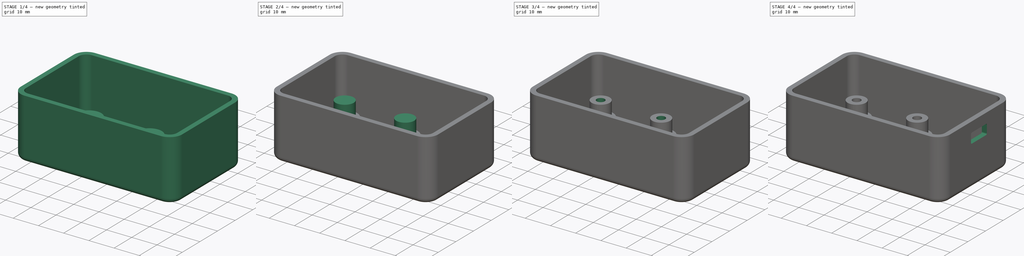
[diagram: build sequence overview — one tinted view per stage of 4, left to right]
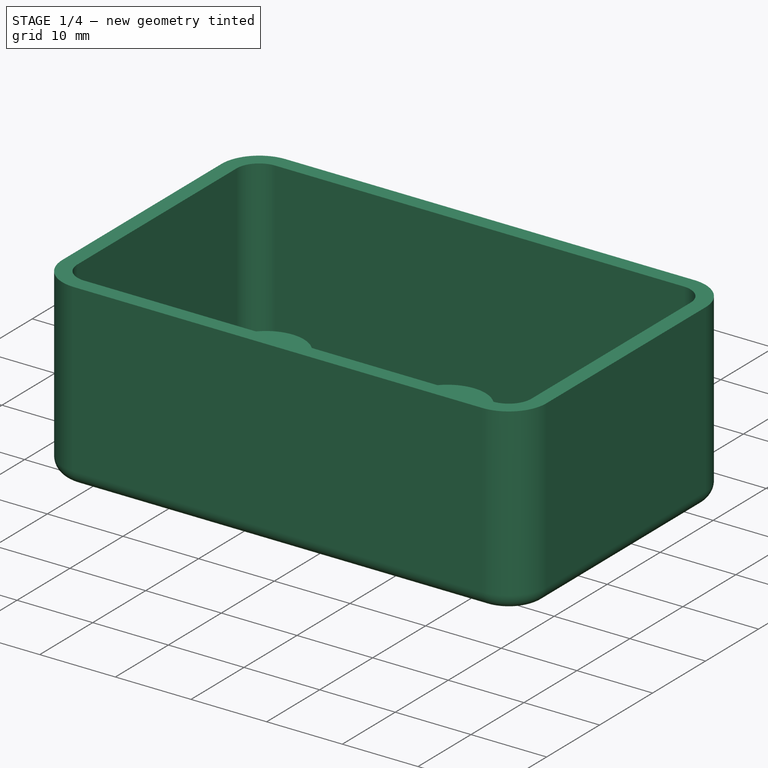
[diagram: stage 1 of 4 — iso view after this stage's code; geometry added in this stage tinted green]
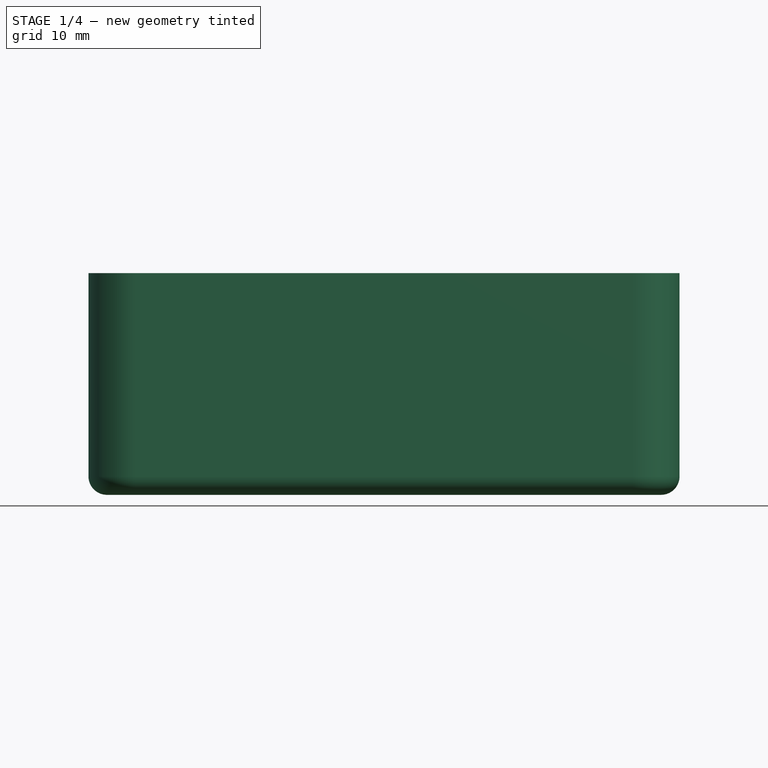
[diagram: stage 1 of 4 — front view after this stage's code; geometry added in this stage tinted green]
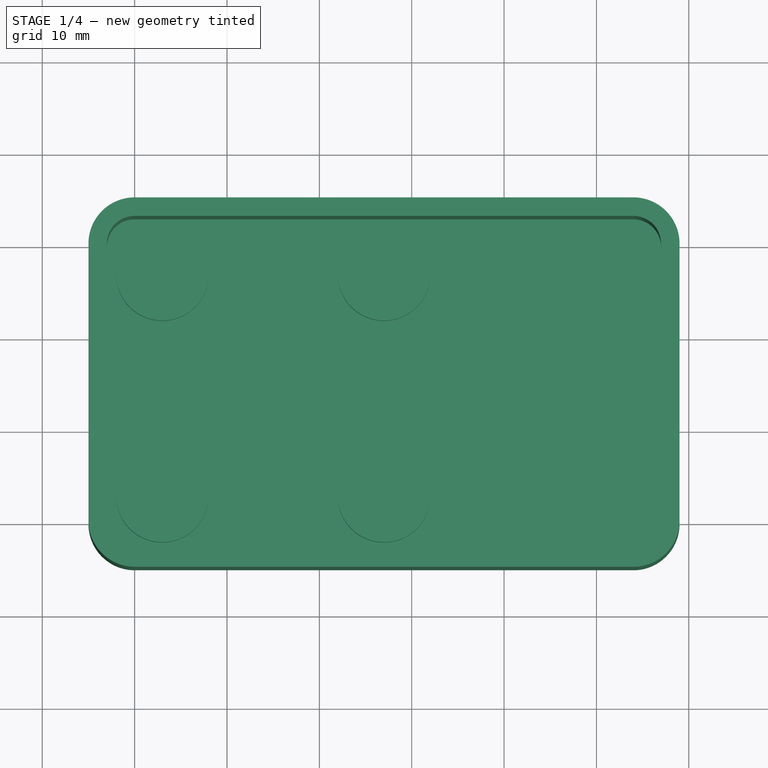
[diagram: stage 1 of 4 — top view after this stage's code; geometry added in this stage tinted green]
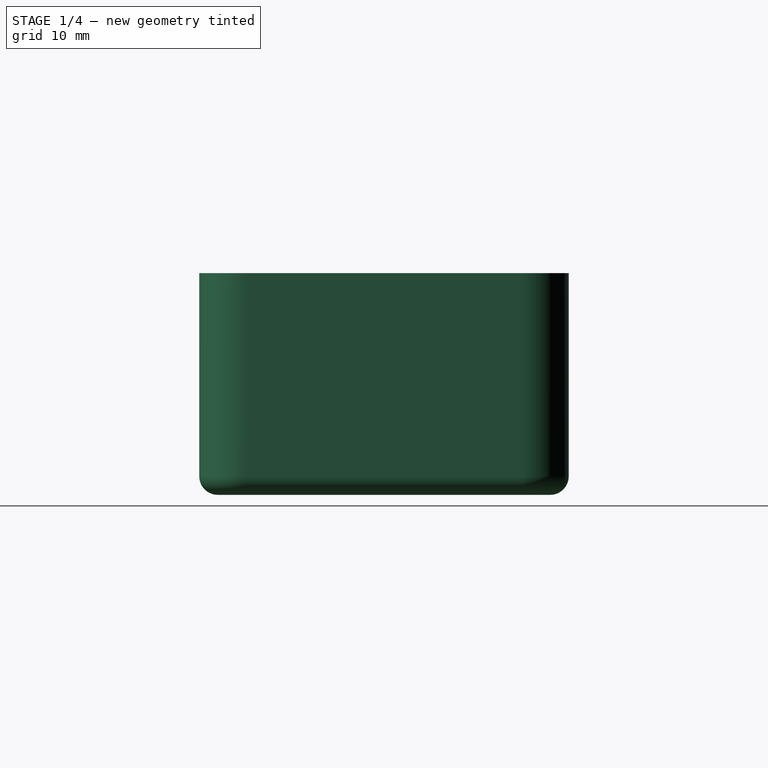
[diagram: stage 1 of 4 — right view after this stage's code; geometry added in this stage tinted green]
FCSTD DOCUMENT  (FreeCAD 0.16R6706 (Git))
Label: gps
License: All rights reserved
LicenseURL: http://en.wikipedia.org/wiki/All_rights_reserved
objects: Sketcher::SketchObject×12, PartDesign::Pad×6, PartDesign::Pocket×6, Part::Thickness×1
note: 37 computed .brp shape members not serialized (recipe doc carries the construction recipe); baked Part::Feature solids carry a one-line shape summary decoded from their .brp

FEATURE [Sketcher::SketchObject] Sketch
  sketch-geometry (8):
    g0: LineSegment StartX=0 StartY=33 StartZ=0 EndX=54 EndY=33 EndZ=0
    g1: LineSegment StartX=57 StartY=30 StartZ=0 EndX=57 EndY=0 EndZ=0
    g2: LineSegment StartX=54 StartY=-3 StartZ=0 EndX=0 EndY=-3 EndZ=0
    g3: LineSegment StartX=-3 StartY=0 StartZ=0 EndX=-3 EndY=30 EndZ=0
    g4: ArcOfCircle CenterX=0 CenterY=30 CenterZ=0 NormalX=0 NormalY=0 NormalZ=1 Radius=3 StartAngle=1.5708 EndAngle=3.14159
    g5: ArcOfCircle CenterX=0 CenterY=0 CenterZ=0 NormalX=0 NormalY=0 NormalZ=1 Radius=3 StartAngle=3.14159 EndAngle=4.71239
    g6: ArcOfCircle CenterX=54 CenterY=30 CenterZ=0 NormalX=0 NormalY=0 NormalZ=1 Radius=3 StartAngle=0 EndAngle=1.5708
    g7: ArcOfCircle CenterX=54 CenterY=0 CenterZ=0 NormalX=0 NormalY=0 NormalZ=1 Radius=3 StartAngle=4.71239 EndAngle=6.28319
  constraints (19):
    c: Horizontal(g0)
    c: Horizontal(g2)
    c: Vertical(g1)
    c: Vertical(g3)
    c: Tangent(g0,g4) = 1.5708
    c: Tangent(g3,g4) = 1.5708
    c: Tangent(g3,g5) = 1.5708
    c: Tangent(g2,g5) = 1.5708
    c: Tangent(g0,g6) = 1.5708
    c: Tangent(g1,g6) = 1.5708
    c: Tangent(g1,g7) = 1.5708
    c: Tangent(g2,g7) = 1.5708
    c: Radius(g4) = 3
    c: Radius(g5) = 3
    c: Radius(g6) = 3
    c: Radius(g7) = 3
    c: DistanceY(g2,g0) = 36
    c: DistanceX(g3,g1) = 60
    c: Coincident(g5,g-1)
FEATURE [PartDesign::Pad] Pad
  Length = 22
  Length2 = 100
  Sketch = -> Sketch
  Type = 0
FEATURE [Part::Thickness] Thickness
  Faces = -> Pad [Face10]
  Intersection = false
  Join = 0
  Mode = 0
  SelfIntersection = false
  Value = 2
FEATURE [Sketcher::SketchObject] Sketch001
  ExternalGeometry = -> [Thickness]
  Support = -> Thickness [Face9]
  sketch-geometry (4):
    g0: Circle CenterX=3 CenterY=27 CenterZ=0 NormalX=0 NormalY=0 NormalZ=1 Radius=5
    g1: Circle CenterX=3 CenterY=3 CenterZ=0 NormalX=0 NormalY=0 NormalZ=1 Radius=5
    g2: Circle CenterX=27 CenterY=27 CenterZ=0 NormalX=0 NormalY=0 NormalZ=1 Radius=5
    g3: Circle CenterX=27 CenterY=3 CenterZ=0 NormalX=0 NormalY=0 NormalZ=1 Radius=5
  constraints (12):
    c: DistanceY(g-3,g1) = 6
    c: DistanceY(g0,g-4) = 6
    c: DistanceX(g0,g2) = 24
    c: DistanceX(g1,g3) = 24
    c: DistanceX(g-5,g0) = 6
    c: DistanceX(g-5,g1) = 6
    c: DistanceY(g3,g2) = 24
    c: DistanceY(g2,g-4) = 6
    c: Radius(g0) = 5
    c: Radius(g1) = 5
    c: Radius(g2) = 5
    c: Radius(g3) = 5
FEATURE [PartDesign::Pad] Pad001
  Length = 3
  Length2 = 100
  Sketch = -> Sketch001
  Type = 0
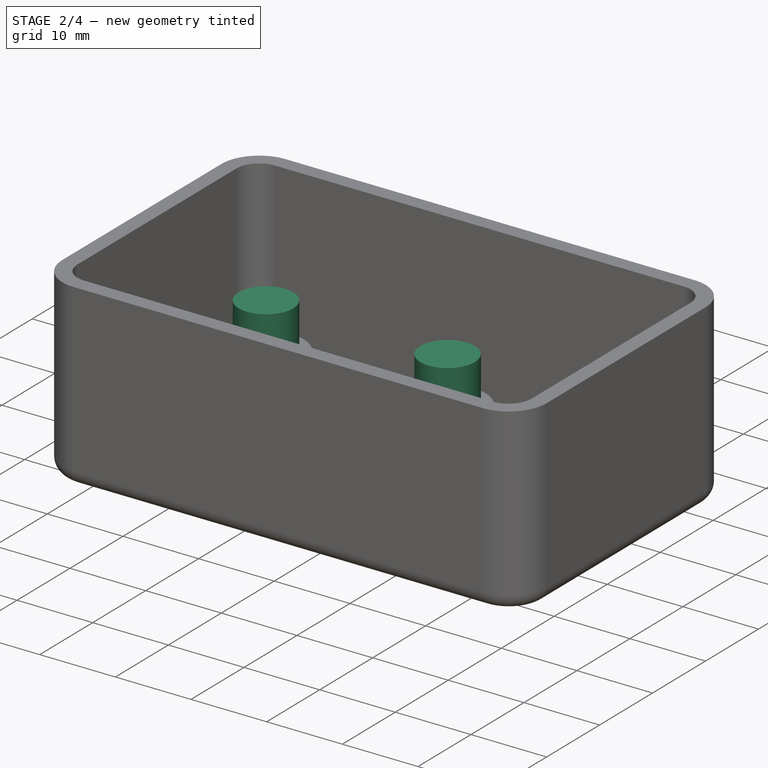
[diagram: stage 2 of 4 — iso view after this stage's code; geometry added in this stage tinted green]
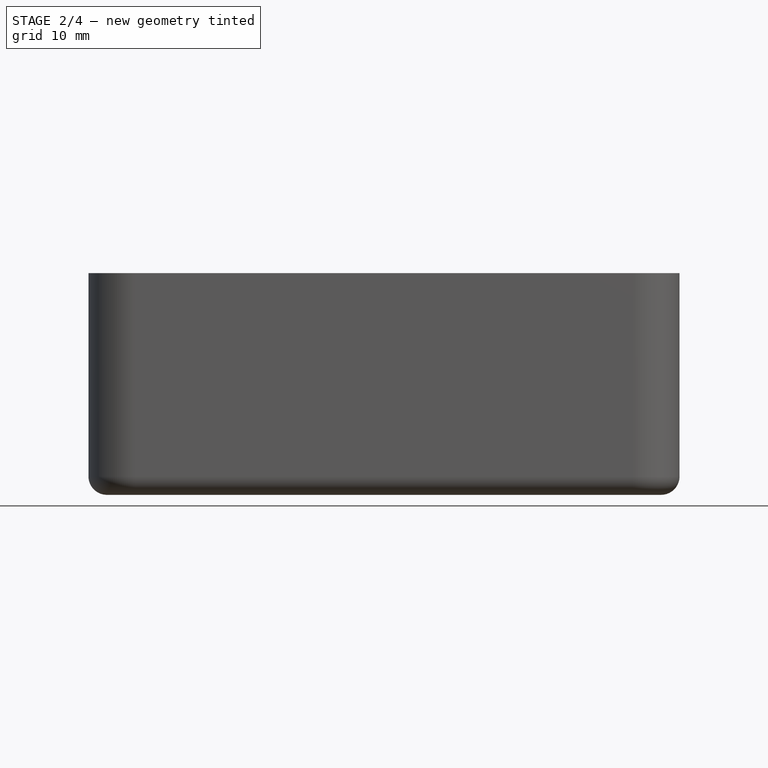
[diagram: stage 2 of 4 — front view after this stage's code; geometry added in this stage tinted green]
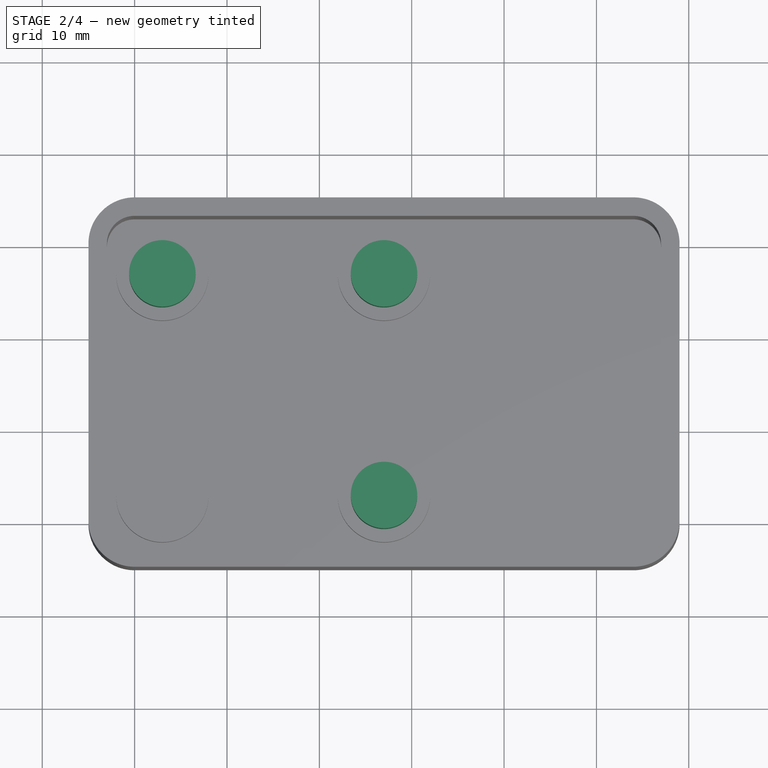
[diagram: stage 2 of 4 — top view after this stage's code; geometry added in this stage tinted green]
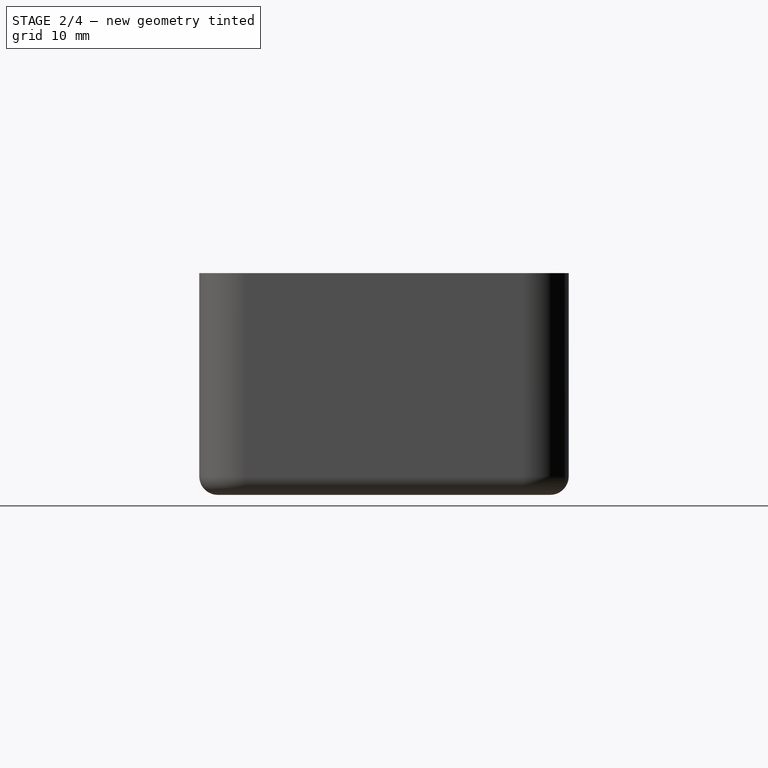
[diagram: stage 2 of 4 — right view after this stage's code; geometry added in this stage tinted green]
FEATURE [Sketcher::SketchObject] Sketch002
  ExternalGeometry = -> [Pad001]
  Placement = pos=(0,0,3) rot=(0,0,1;0rad)
  Support = -> Pad001 [Face26]
  sketch-geometry (1):
    g0: Circle CenterX=27 CenterY=27 CenterZ=0 NormalX=0 NormalY=0 NormalZ=1 Radius=3.6
  constraints (2):
    c: Coincident(g0,g-3)
    c: Radius(g0) = 3.6
FEATURE [PartDesign::Pad] Pad002
  Length = 6
  Length2 = 100
  Sketch = -> Sketch002
  Type = 0
FEATURE [Sketcher::SketchObject] Sketch003
  ExternalGeometry = -> [Pad002]
  Placement = pos=(0,0,3) rot=(0,0,1;0rad)
  Support = -> Pad002 [Face25]
  sketch-geometry (1):
    g0: Circle CenterX=27 CenterY=3 CenterZ=0 NormalX=0 NormalY=0 NormalZ=1 Radius=3.6
  constraints (2):
    c: Coincident(g-3,g0)
    c: Radius(g0) = 3.6
FEATURE [PartDesign::Pad] Pad003
  Length = 6
  Length2 = 100
  Sketch = -> Sketch003
  Type = 0
FEATURE [Sketcher::SketchObject] Sketch004
  ExternalGeometry = -> [Pad003]
  Placement = pos=(0,0,3) rot=(0,0,1;0rad)
  Support = -> Pad003 [Face23]
  sketch-geometry (1):
    g0: Circle CenterX=3 CenterY=27 CenterZ=0 NormalX=0 NormalY=0 NormalZ=1 Radius=3.6
  constraints (2):
    c: Coincident(g-3,g0)
    c: Radius(g0) = 3.6
FEATURE [PartDesign::Pad] Pad004
  Length = 6
  Length2 = 100
  Sketch = -> Sketch004
  Type = 0
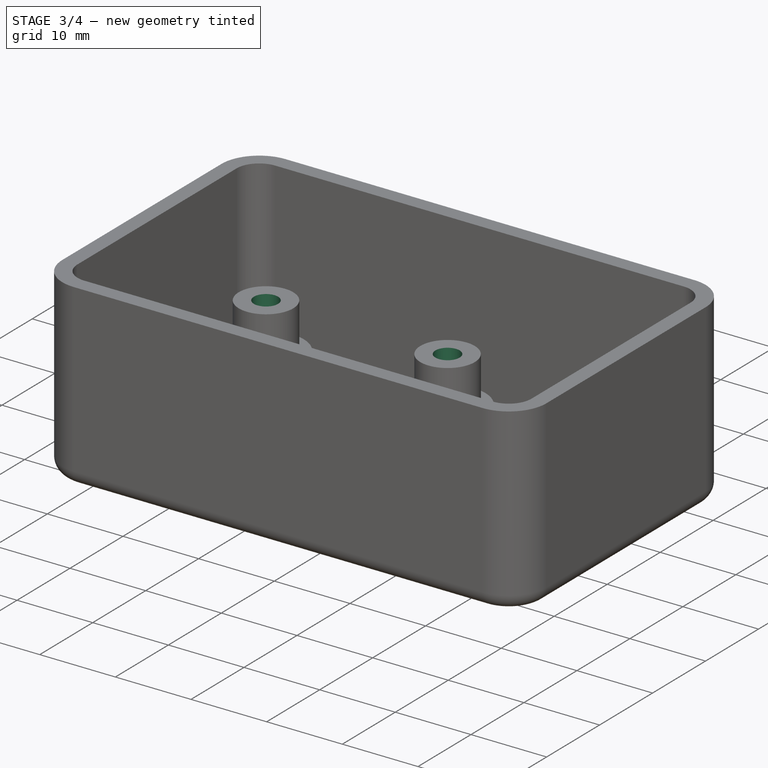
[diagram: stage 3 of 4 — iso view after this stage's code; geometry added in this stage tinted green]
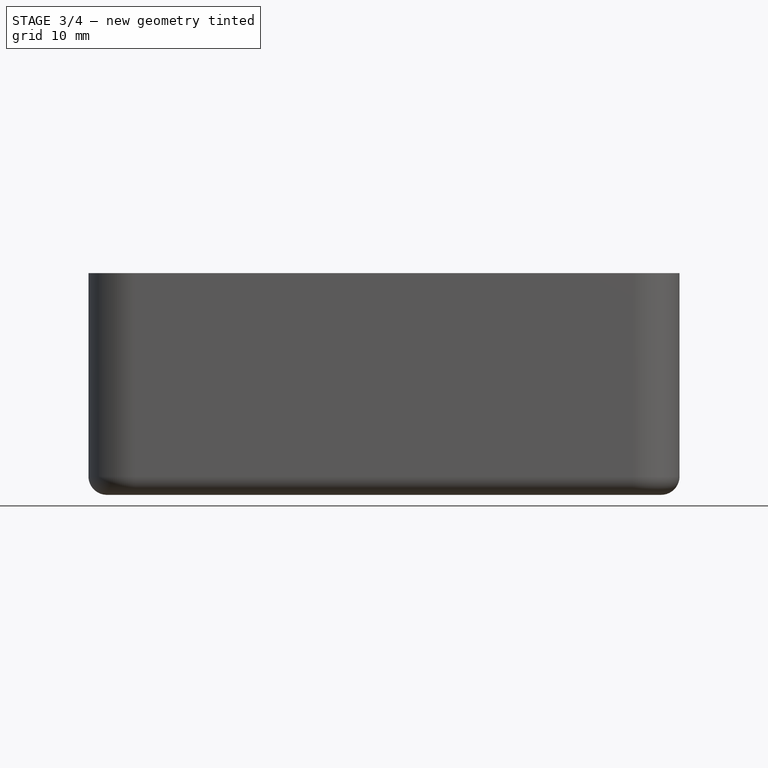
[diagram: stage 3 of 4 — front view after this stage's code; geometry added in this stage tinted green]
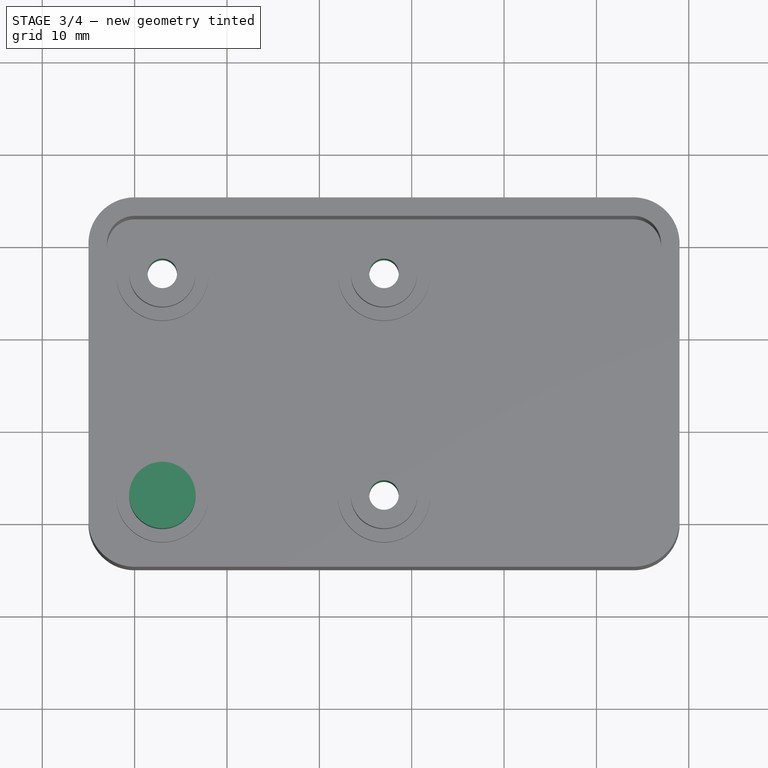
[diagram: stage 3 of 4 — top view after this stage's code; geometry added in this stage tinted green]
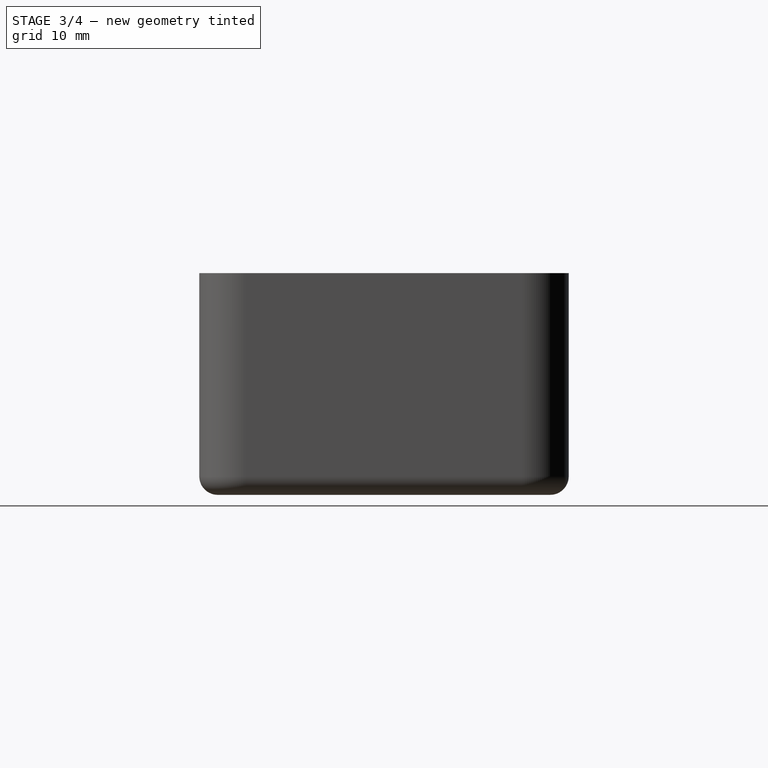
[diagram: stage 3 of 4 — right view after this stage's code; geometry added in this stage tinted green]
FEATURE [Sketcher::SketchObject] Sketch005
  ExternalGeometry = -> [Pad004]
  Placement = pos=(0,0,3) rot=(0,0,1;0rad)
  Support = -> Pad004 [Face24]
  sketch-geometry (1):
    g0: Circle CenterX=3 CenterY=3 CenterZ=0 NormalX=0 NormalY=0 NormalZ=1 Radius=3.6
  constraints (2):
    c: Coincident(g-3,g0)
    c: Radius(g0) = 3.6
FEATURE [PartDesign::Pad] Pad005
  Length = 6
  Length2 = 100
  Sketch = -> Sketch005
  Type = 0
FEATURE [Sketcher::SketchObject] Sketch006
  ExternalGeometry = -> [Pad005]
  Placement = pos=(0,0,9) rot=(0,0,1;0rad)
  Support = -> Pad005 [Face43]
  sketch-geometry (1):
    g0: Circle CenterX=27 CenterY=27 CenterZ=0 NormalX=0 NormalY=0 NormalZ=1 Radius=1.6
  constraints (2):
    c: Coincident(g0,g-3)
    c: Radius(g0) = 1.6
FEATURE [PartDesign::Pocket] Pocket
  Length = 5
  Sketch = -> Sketch006
  Type = 2
FEATURE [Sketcher::SketchObject] Sketch007
  ExternalGeometry = -> [Pocket]
  Placement = pos=(0,0,9) rot=(0,0,1;0rad)
  Support = -> Pocket [Face42]
  sketch-geometry (1):
    g0: Circle CenterX=27 CenterY=3 CenterZ=0 NormalX=0 NormalY=0 NormalZ=1 Radius=1.6
  constraints (2):
    c: Coincident(g-3,g0)
    c: Radius(g0) = 1.6
FEATURE [PartDesign::Pocket] Pocket001
  Length = 5
  Sketch = -> Sketch007
  Type = 2
FEATURE [Sketcher::SketchObject] Sketch008
  ExternalGeometry = -> [Pocket001]
  Placement = pos=(0,0,9) rot=(0,0,1;0rad)
  Support = -> Pocket001 [Face40]
  sketch-geometry (1):
    g0: Circle CenterX=3 CenterY=27 CenterZ=0 NormalX=0 NormalY=0 NormalZ=1 Radius=1.6
  constraints (2):
    c: Coincident(g0,g-3)
    c: Radius(g0) = 1.6
FEATURE [PartDesign::Pocket] Pocket002
  Length = 5
  Sketch = -> Sketch008
  Type = 2
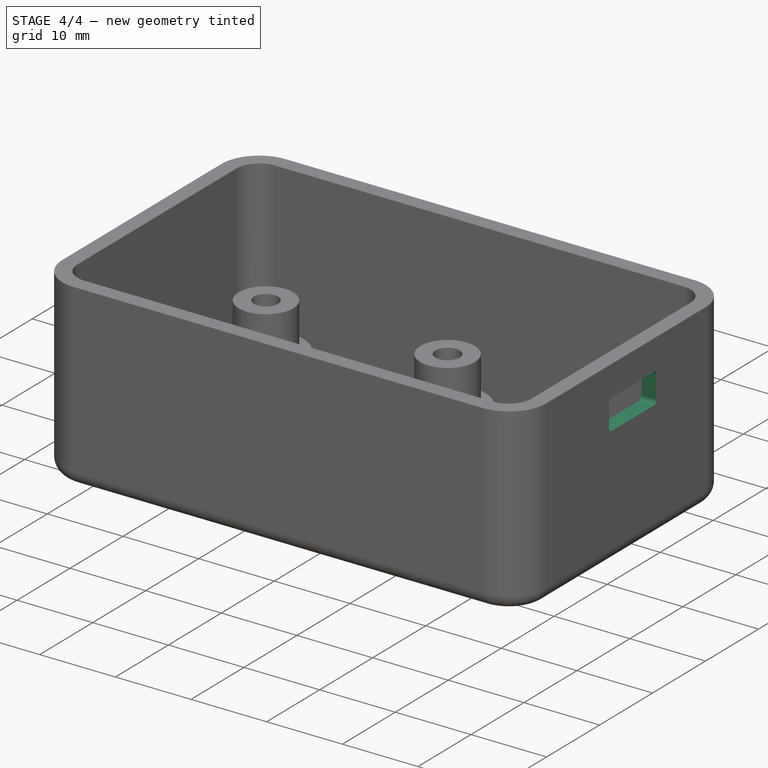
[diagram: stage 4 of 4 — iso view after this stage's code; geometry added in this stage tinted green]
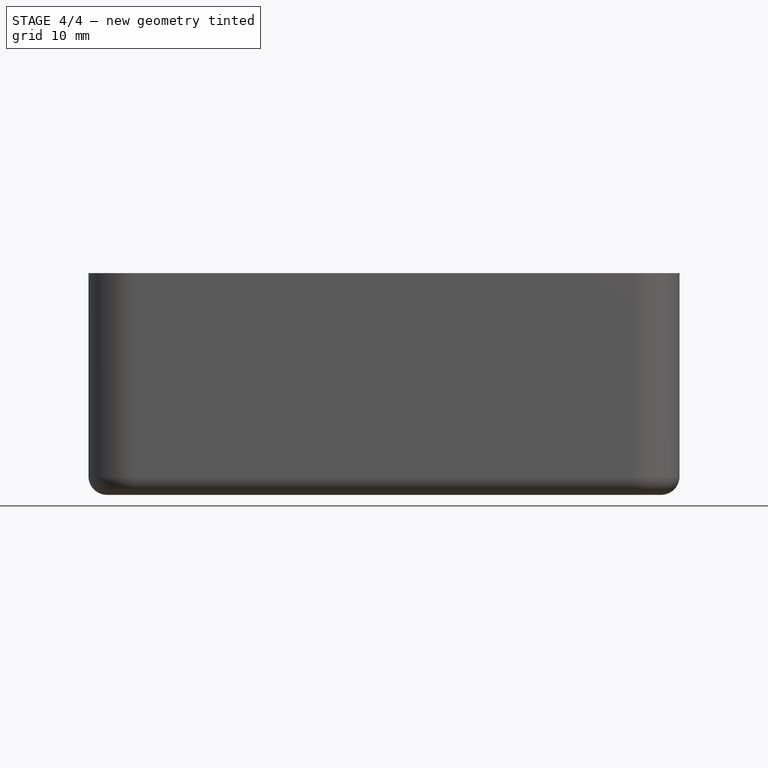
[diagram: stage 4 of 4 — front view after this stage's code; geometry added in this stage tinted green]
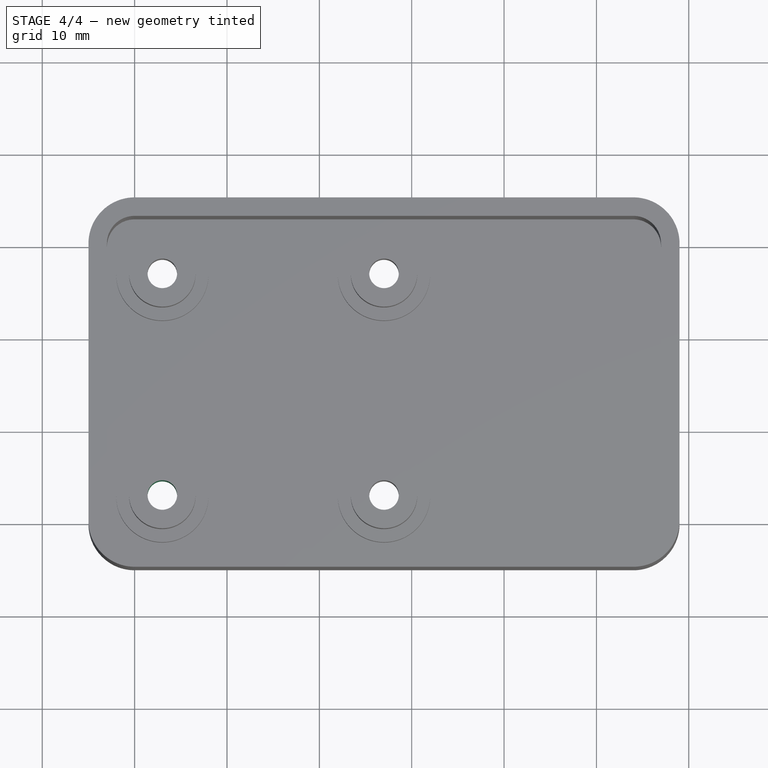
[diagram: stage 4 of 4 — top view after this stage's code; geometry added in this stage tinted green]
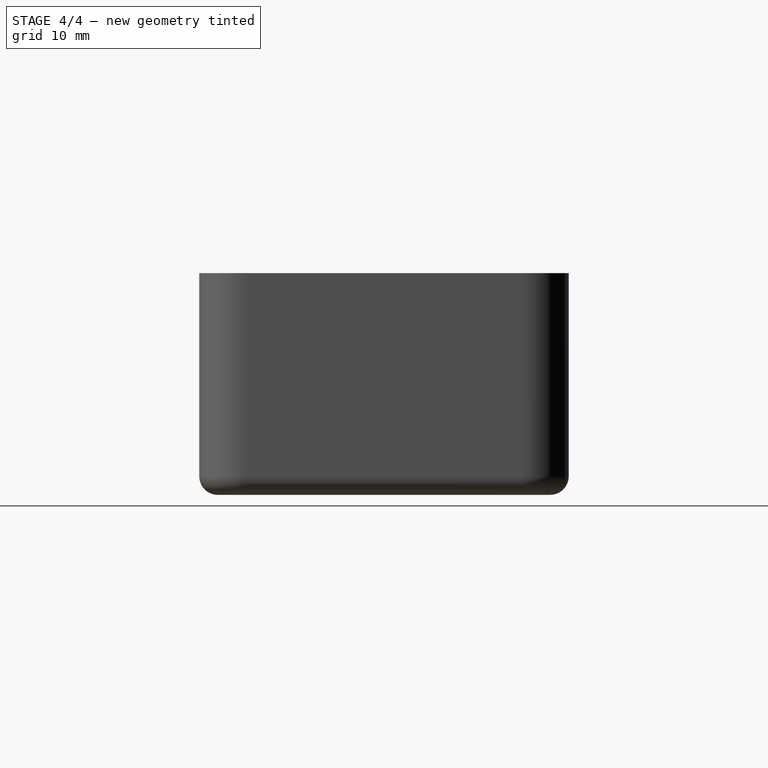
[diagram: stage 4 of 4 — right view after this stage's code; geometry added in this stage tinted green]
FEATURE [Sketcher::SketchObject] Sketch009
  ExternalGeometry = -> [Pocket002]
  Placement = pos=(0,0,9) rot=(0,0,1;0rad)
  Support = -> Pocket002 [Face41]
  sketch-geometry (1):
    g0: Circle CenterX=3 CenterY=3 CenterZ=0 NormalX=0 NormalY=0 NormalZ=1 Radius=1.6
  constraints (2):
    c: Coincident(g-3,g0)
    c: Radius(g0) = 1.6
FEATURE [PartDesign::Pocket] Pocket003
  Length = 5
  Sketch = -> Sketch009
  Type = 2
FEATURE [Sketcher::SketchObject] Sketch010
  ExternalGeometry = -> [Pocket003]
  Placement = pos=(0,0,-2) rot=(1,0,0;3.14159rad)
  Support = -> Pocket003 [Face39]
  sketch-geometry (4):
    g0: Circle CenterX=27 CenterY=-3 CenterZ=0 NormalX=0 NormalY=0 NormalZ=1 Radius=3
    g1: Circle CenterX=27 CenterY=-27 CenterZ=0 NormalX=0 NormalY=0 NormalZ=1 Radius=3
    g2: Circle CenterX=3 CenterY=-3 CenterZ=0 NormalX=0 NormalY=0 NormalZ=1 Radius=3
    g3: Circle CenterX=3 CenterY=-27 CenterZ=0 NormalX=0 NormalY=0 NormalZ=1 Radius=3
  constraints (8):
    c: Coincident(g-3,g0)
    c: Coincident(g-4,g1)
    c: Coincident(g2,g-5)
    c: Coincident(g3,g-6)
    c: Radius(g0) = 3
    c: Radius(g1) = 3
    c: Radius(g2) = 3
    c: Radius(g3) = 3
FEATURE [PartDesign::Pocket] Pocket004
  Length = 3
  Sketch = -> Sketch010
  Type = 0
FEATURE [Sketcher::SketchObject] Sketch011
  ExternalGeometry = -> [Pocket004]
  Placement = pos=(59,0,0) rot=(0.57735,0.57735,0.57735;2.0944rad)
  Support = -> Pocket004 [Face15]
  sketch-geometry (8):
    g0: LineSegment StartX=12.27 StartY=18 StartZ=0 EndX=20.27 EndY=18 EndZ=0
    g1: LineSegment StartX=20.77 StartY=17.5 StartZ=0 EndX=20.77 EndY=14.5 EndZ=0
    g2: LineSegment StartX=20.27 StartY=14 StartZ=0 EndX=12.27 EndY=14 EndZ=0
    g3: LineSegment StartX=11.77 StartY=14.5 StartZ=0 EndX=11.77 EndY=17.5 EndZ=0
    g4: ArcOfCircle CenterX=12.27 CenterY=14.5 CenterZ=0 NormalX=0 NormalY=0 NormalZ=1 Radius=0.5 StartAngle=3.14159 EndAngle=4.71239
    g5: ArcOfCircle CenterX=12.27 CenterY=17.5 CenterZ=0 NormalX=0 NormalY=0 NormalZ=1 Radius=0.5 StartAngle=1.5708 EndAngle=3.14159
    g6: ArcOfCircle CenterX=20.27 CenterY=17.5 CenterZ=0 NormalX=0 NormalY=0 NormalZ=1 Radius=0.5 StartAngle=0 EndAngle=1.5708
    g7: ArcOfCircle CenterX=20.27 CenterY=14.5 CenterZ=0 NormalX=0 NormalY=0 NormalZ=1 Radius=0.5 StartAngle=4.71239 EndAngle=6.28319
  constraints (20):
    c: Horizontal(g0)
    c: Horizontal(g2)
    c: Vertical(g1)
    c: Vertical(g3)
    c: Tangent(g3,g4) = 1.5708
    c: Tangent(g2,g4) = 1.5708
    c: Tangent(g3,g5) = 1.5708
    c: Tangent(g0,g5) = 1.5708
    c: Tangent(g0,g6) = 1.5708
    c: Tangent(g1,g6) = 1.5708
    c: Tangent(g2,g7) = 1.5708
    c: Tangent(g1,g7) = 1.5708
    c: Radius(g5) = 0.5
    c: Radius(g4) = 0.5
    c: Radius(g7) = 0.5
    c: Radius(g6) = 0.5
    c: DistanceY(g2,g0) = 4
    c: DistanceX(g0,g0) = 8
    c: DistanceY(g-1,g2) = 14
    c: DistanceX(g-3,g3) = 16.77
FEATURE [PartDesign::Pocket] Pocket005
  Length = 5
  Sketch = -> Sketch011
  Type = 2
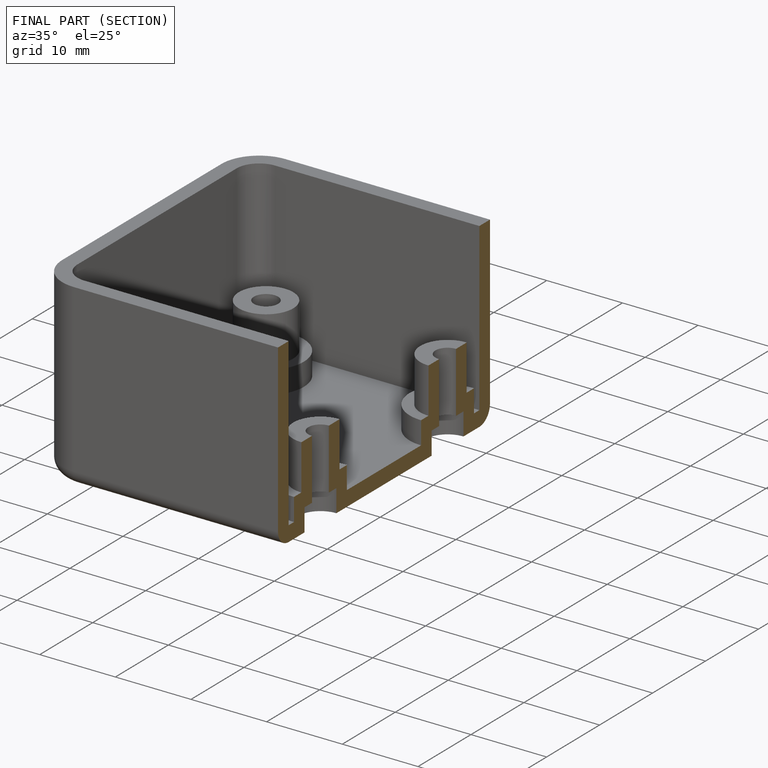
[diagram: finished part — half-section view (interior)]
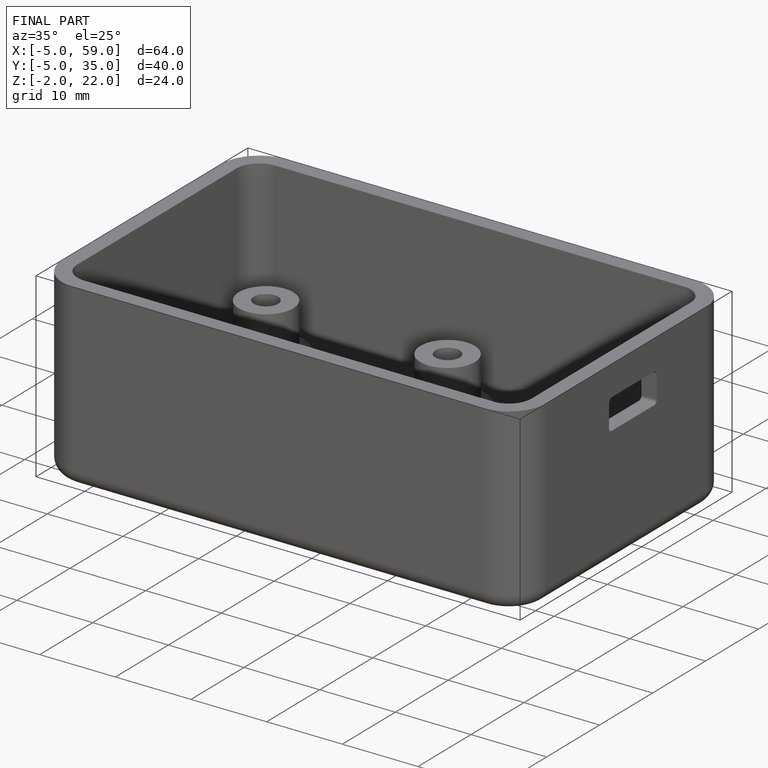
[diagram: finished part — iso view with bounding-box wireframe]
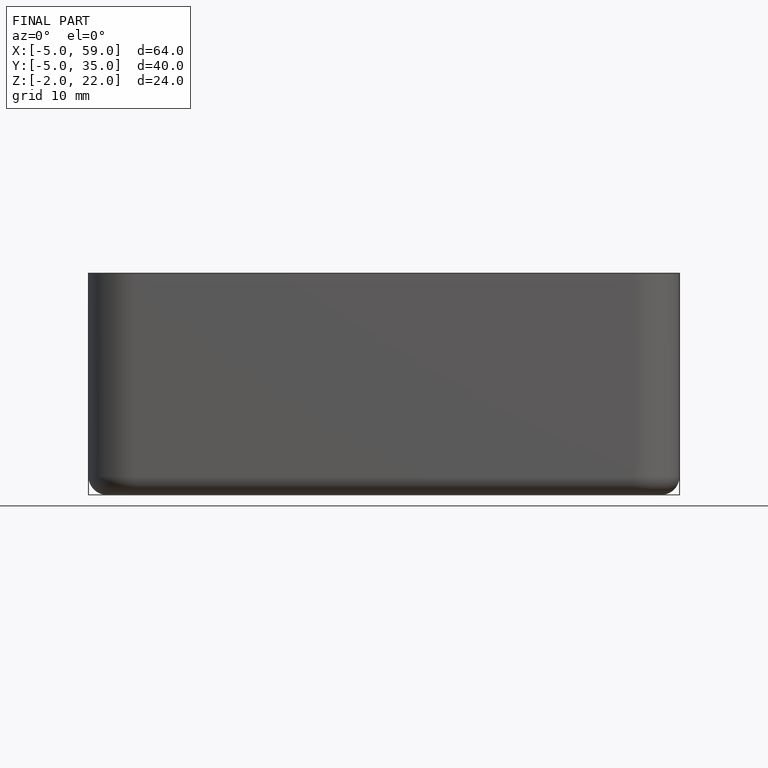
[diagram: finished part — front view with bounding-box wireframe]
